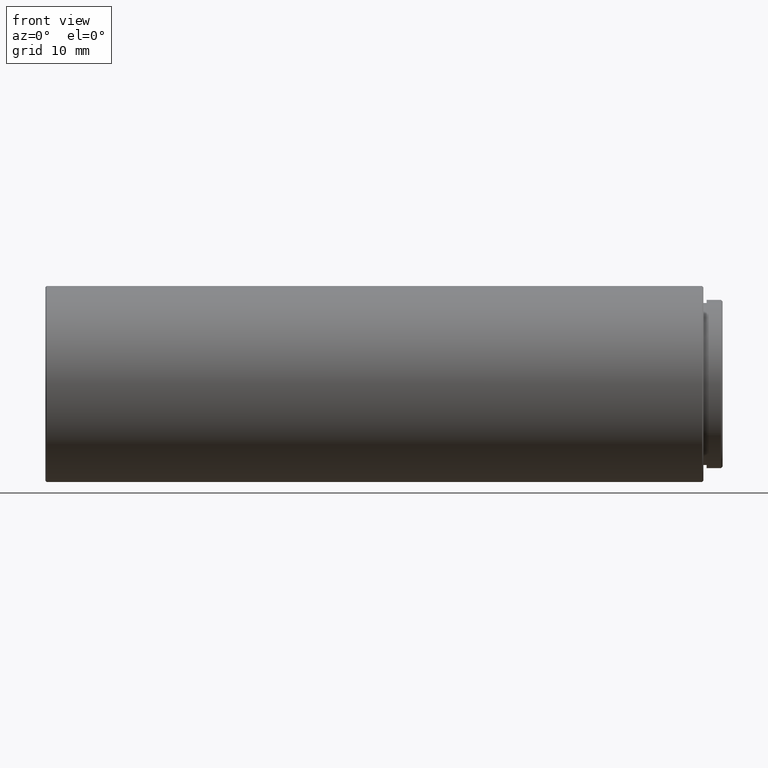
[diagram: clean part render]
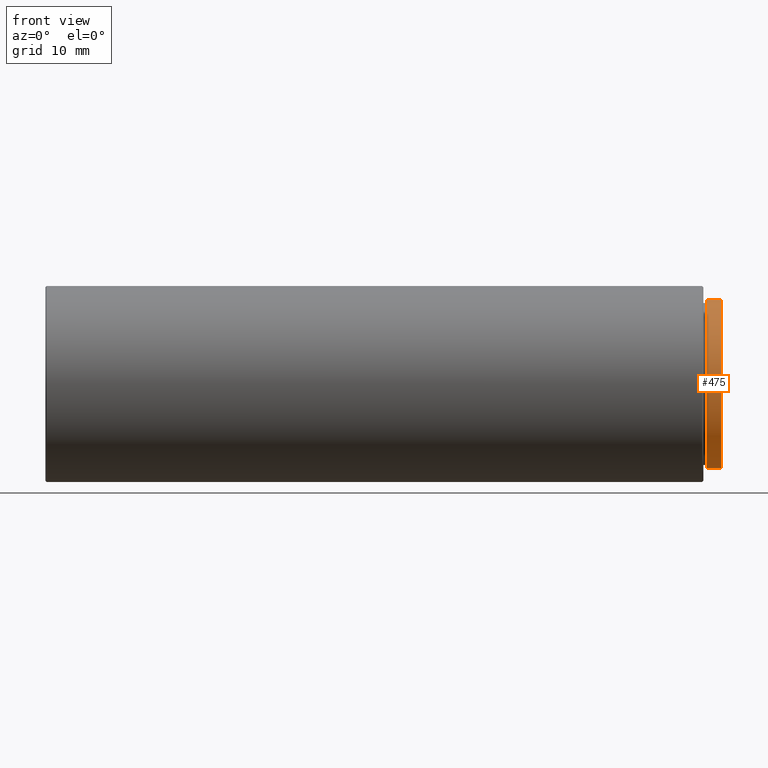
[diagram: same view with one face highlighted and labeled with its STEP entity id]
A machine part, front view. The second image highlights one B-rep face of the part: STEP entity #475.
In plain terms, the highlighted cylindrical surface (partial cylindrical patch) has radius 13.1 mm, axis along (-1, -0, -0).
Its self-contained STEP definition (entity closure, byte-faithful):
#29 = AXIS2_PLACEMENT_3D ( 'NONE', #138, #371, #150 ) ;
#30 = VERTEX_POINT ( 'NONE', #131 ) ;
#113 = FACE_OUTER_BOUND ( 'NONE', #399, .T. ) ;
#131 = CARTESIAN_POINT ( 'NONE',  ( 6.275999999999984702, -20.10857142857141966, -13.10000000000000142 ) ) ;
#138 = CARTESIAN_POINT ( 'NONE',  ( 6.525999999999982926, -20.10857142857141966, 0.000000000000000000 ) ) ;
#150 = DIRECTION ( 'NONE',  ( 0.000000000000000000, 0.000000000000000000, 1.000000000000000000 ) ) ;
#225 = DIRECTION ( 'NONE',  ( 0.000000000000000000, 0.000000000000000000, -1.000000000000000000 ) ) ;
#261 = EDGE_CURVE ( 'NONE', #30, #1361, #417, .T. ) ;
#309 = ORIENTED_EDGE ( 'NONE', *, *, #512, .F. ) ;
#318 = DIRECTION ( 'NONE',  ( 1.000000000000000000, 0.000000000000000000, 0.000000000000000000 ) ) ;
#319 = CIRCLE ( 'NONE', #845, 13.10000000000000142 ) ;
#327 = DIRECTION ( 'NONE',  ( 0.000000000000000000, 0.000000000000000000, -1.000000000000000000 ) ) ;
#371 = DIRECTION ( 'NONE',  ( -1.000000000000000000, -0.000000000000000000, -0.000000000000000000 ) ) ;
#399 = EDGE_LOOP ( 'NONE', ( #309, #1304, #1412, #791 ) ) ;
#402 = VERTEX_POINT ( 'NONE', #1106 ) ;
#417 = CIRCLE ( 'NONE', #1390, 13.10000000000000142 ) ;
#473 = VECTOR ( 'NONE', #756, 1000.000000000000000 ) ;
#475 = ADVANCED_FACE ( 'NONE', ( #113 ), #899, .T. ) ;
#512 = EDGE_CURVE ( 'NONE', #30, #1092, #1226, .T. ) ;
#569 = VECTOR ( 'NONE', #884, 1000.000000000000000 ) ;
#630 = CARTESIAN_POINT ( 'NONE',  ( 6.275999999999984702, -20.10857142857141966, 13.10000000000000142 ) ) ;
#676 = EDGE_CURVE ( 'NONE', #402, #1092, #319, .T. ) ;
#692 = DIRECTION ( 'NONE',  ( -1.000000000000000000, 0.000000000000000000, 0.000000000000000000 ) ) ;
#756 = DIRECTION ( 'NONE',  ( -1.000000000000000000, -0.000000000000000000, -0.000000000000000000 ) ) ;
#791 = ORIENTED_EDGE ( 'NONE', *, *, #676, .T. ) ;
#845 = AXIS2_PLACEMENT_3D ( 'NONE', #1064, #318, #327 ) ;
#884 = DIRECTION ( 'NONE',  ( -1.000000000000000000, -0.000000000000000000, -0.000000000000000000 ) ) ;
#899 = CYLINDRICAL_SURFACE ( 'NONE', #29, 13.10000000000000142 ) ;
#980 = EDGE_CURVE ( 'NONE', #1361, #402, #1389, .T. ) ;
#1064 = CARTESIAN_POINT ( 'NONE',  ( 4.025999999999982926, -20.10857142857141966, 0.000000000000000000 ) ) ;
#1092 = VERTEX_POINT ( 'NONE', #1279 ) ;
#1106 = CARTESIAN_POINT ( 'NONE',  ( 4.025999999999982926, -20.10857142857141966, 13.10000000000000142 ) ) ;
#1126 = CARTESIAN_POINT ( 'NONE',  ( 6.525999999999982926, -20.10857142857141966, -13.10000000000000142 ) ) ;
#1144 = CARTESIAN_POINT ( 'NONE',  ( 6.525999999999982926, -20.10857142857141966, 13.10000000000000142 ) ) ;
#1226 = LINE ( 'NONE', #1126, #569 ) ;
#1279 = CARTESIAN_POINT ( 'NONE',  ( 4.025999999999982926, -20.10857142857141966, -13.10000000000000142 ) ) ;
#1304 = ORIENTED_EDGE ( 'NONE', *, *, #261, .T. ) ;
#1361 = VERTEX_POINT ( 'NONE', #630 ) ;
#1389 = LINE ( 'NONE', #1144, #473 ) ;
#1390 = AXIS2_PLACEMENT_3D ( 'NONE', #1433, #692, #225 ) ;
#1412 = ORIENTED_EDGE ( 'NONE', *, *, #980, .T. ) ;
#1433 = CARTESIAN_POINT ( 'NONE',  ( 6.275999999999984702, -20.10857142857141966, 0.000000000000000000 ) ) ;